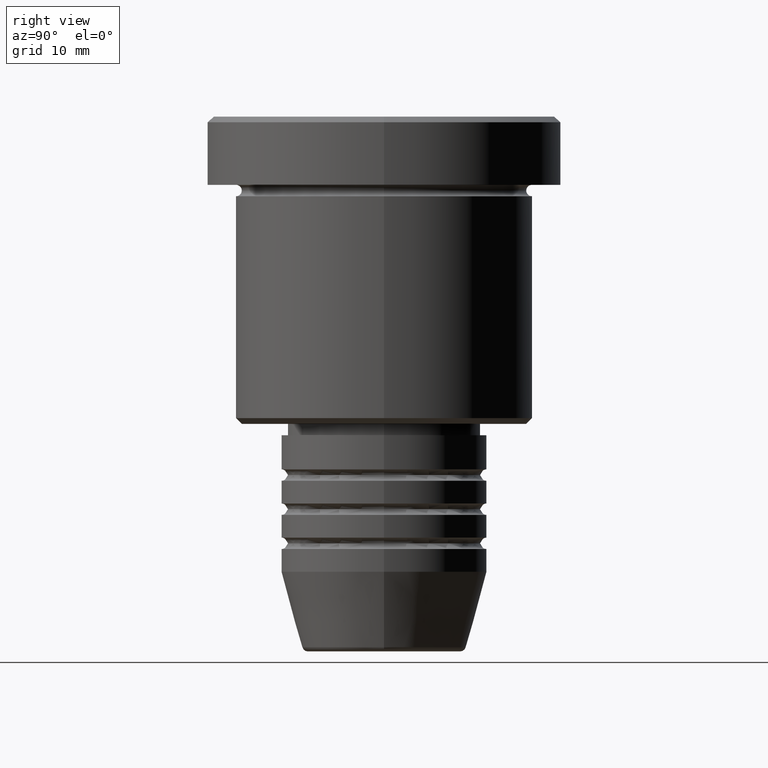
[diagram: clean part render]
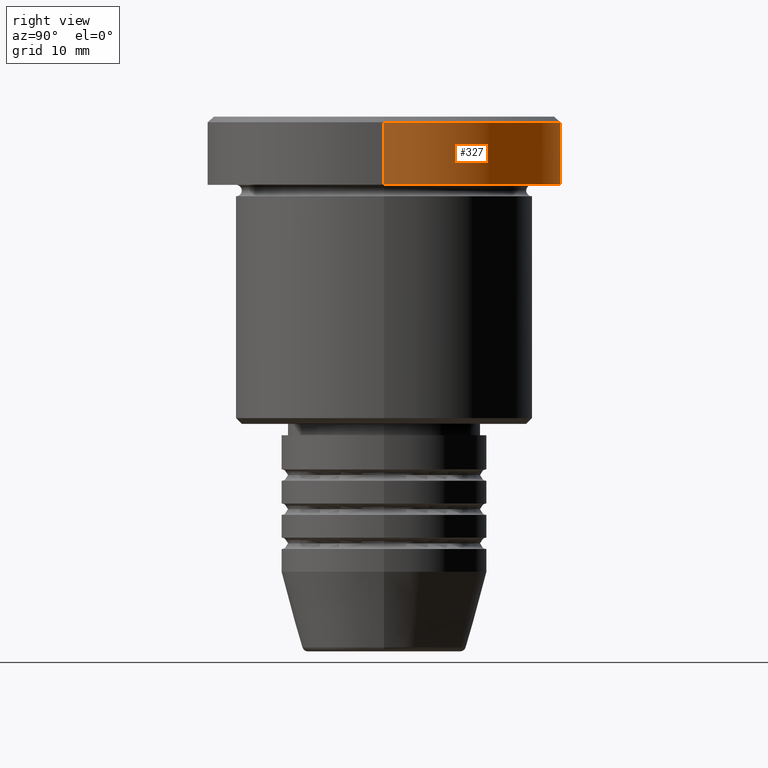
[diagram: same view with one face highlighted and labeled with its STEP entity id]
A machine part, right view. The second image highlights one B-rep face of the part: STEP entity #327.
In plain terms, the highlighted cylindrical surface (partial cylindrical patch) has radius 15.5 mm, axis along (-0, -0, 1).
Its self-contained STEP definition (entity closure, byte-faithful):
#20 = CARTESIAN_POINT ( 'NONE',  ( 0.000000000000000000, 0.000000000000000000, 0.000000000000000000 ) ) ;
#31 = VERTEX_POINT ( 'NONE', #253 ) ;
#129 = VECTOR ( 'NONE', #465, 1000.000000000000000 ) ;
#143 = EDGE_CURVE ( 'NONE', #1089, #309, #1156, .T. ) ;
#148 = DIRECTION ( 'NONE',  ( 0.000000000000000000, 0.000000000000000000, -1.000000000000000000 ) ) ;
#157 = DIRECTION ( 'NONE',  ( -0.000000000000000000, -0.000000000000000000, 1.000000000000000000 ) ) ;
#186 = CARTESIAN_POINT ( 'NONE',  ( 15.50000000000000000, 0.000000000000000000, 0.000000000000000000 ) ) ;
#253 = CARTESIAN_POINT ( 'NONE',  ( 15.50000000000000000, 0.000000000000000000, -0.5000000000000057732 ) ) ;
#280 = AXIS2_PLACEMENT_3D ( 'NONE', #284, #830, #660 ) ;
#284 = CARTESIAN_POINT ( 'NONE',  ( 0.000000000000000000, 0.000000000000000000, -5.999999999999995559 ) ) ;
#288 = CARTESIAN_POINT ( 'NONE',  ( -15.50000000000000000, 1.898202538678397557E-15, -0.5000000000000057732 ) ) ;
#296 = VERTEX_POINT ( 'NONE', #288 ) ;
#309 = VERTEX_POINT ( 'NONE', #575 ) ;
#327 = ADVANCED_FACE ( 'NONE', ( #931 ), #736, .T. ) ;
#407 = CIRCLE ( 'NONE', #1124, 15.50000000000000000 ) ;
#414 = ORIENTED_EDGE ( 'NONE', *, *, #497, .T. ) ;
#437 = ORIENTED_EDGE ( 'NONE', *, *, #945, .F. ) ;
#465 = DIRECTION ( 'NONE',  ( -0.000000000000000000, -0.000000000000000000, 1.000000000000000000 ) ) ;
#497 = EDGE_CURVE ( 'NONE', #309, #296, #990, .T. ) ;
#508 = EDGE_LOOP ( 'NONE', ( #925, #414, #826, #437 ) ) ;
#557 = DIRECTION ( 'NONE',  ( 1.000000000000000000, 0.000000000000000000, 0.000000000000000000 ) ) ;
#575 = CARTESIAN_POINT ( 'NONE',  ( -15.50000000000000000, 1.898202538678397557E-15, -5.999999999999995559 ) ) ;
#660 = DIRECTION ( 'NONE',  ( 1.000000000000000000, 0.000000000000000000, 0.000000000000000000 ) ) ;
#735 = CARTESIAN_POINT ( 'NONE',  ( 0.000000000000000000, 0.000000000000000000, -0.5000000000000057732 ) ) ;
#736 = CYLINDRICAL_SURFACE ( 'NONE', #1002, 15.50000000000000000 ) ;
#807 = CARTESIAN_POINT ( 'NONE',  ( -15.50000000000000000, 1.898202538678397557E-15, 0.000000000000000000 ) ) ;
#826 = ORIENTED_EDGE ( 'NONE', *, *, #960, .T. ) ;
#830 = DIRECTION ( 'NONE',  ( -0.000000000000000000, -0.000000000000000000, 1.000000000000000000 ) ) ;
#866 = DIRECTION ( 'NONE',  ( 1.000000000000000000, 0.000000000000000000, 0.000000000000000000 ) ) ;
#919 = LINE ( 'NONE', #186, #129 ) ;
#925 = ORIENTED_EDGE ( 'NONE', *, *, #143, .T. ) ;
#931 = FACE_OUTER_BOUND ( 'NONE', #508, .T. ) ;
#945 = EDGE_CURVE ( 'NONE', #1089, #31, #919, .T. ) ;
#960 = EDGE_CURVE ( 'NONE', #296, #31, #407, .T. ) ;
#990 = LINE ( 'NONE', #807, #1141 ) ;
#1001 = CARTESIAN_POINT ( 'NONE',  ( 15.50000000000000000, 0.000000000000000000, -5.999999999999995559 ) ) ;
#1002 = AXIS2_PLACEMENT_3D ( 'NONE', #20, #1096, #557 ) ;
#1089 = VERTEX_POINT ( 'NONE', #1001 ) ;
#1096 = DIRECTION ( 'NONE',  ( -0.000000000000000000, -0.000000000000000000, 1.000000000000000000 ) ) ;
#1124 = AXIS2_PLACEMENT_3D ( 'NONE', #735, #148, #866 ) ;
#1141 = VECTOR ( 'NONE', #157, 1000.000000000000000 ) ;
#1156 = CIRCLE ( 'NONE', #280, 15.50000000000000000 ) ;